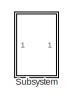
[diagram: root canvas - part 1/2, top right region]
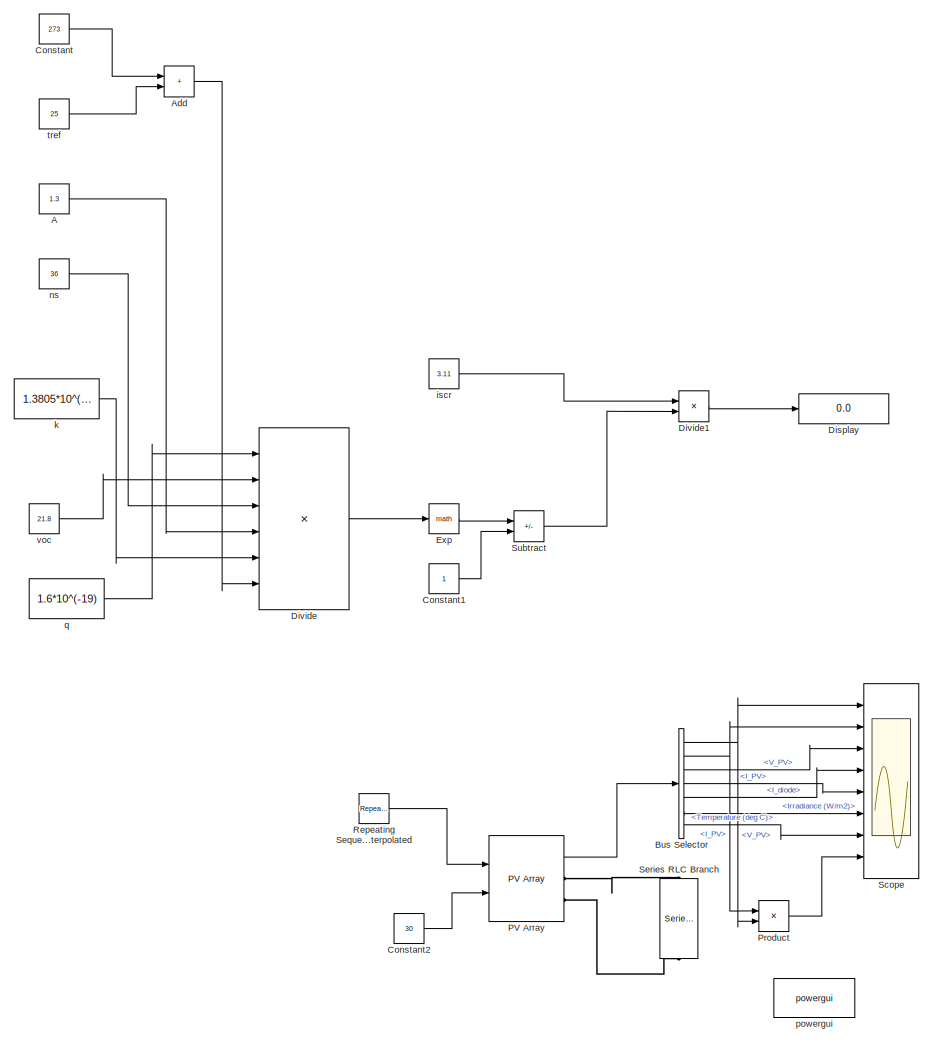
[diagram: root canvas - part 2/2, bottom left region]
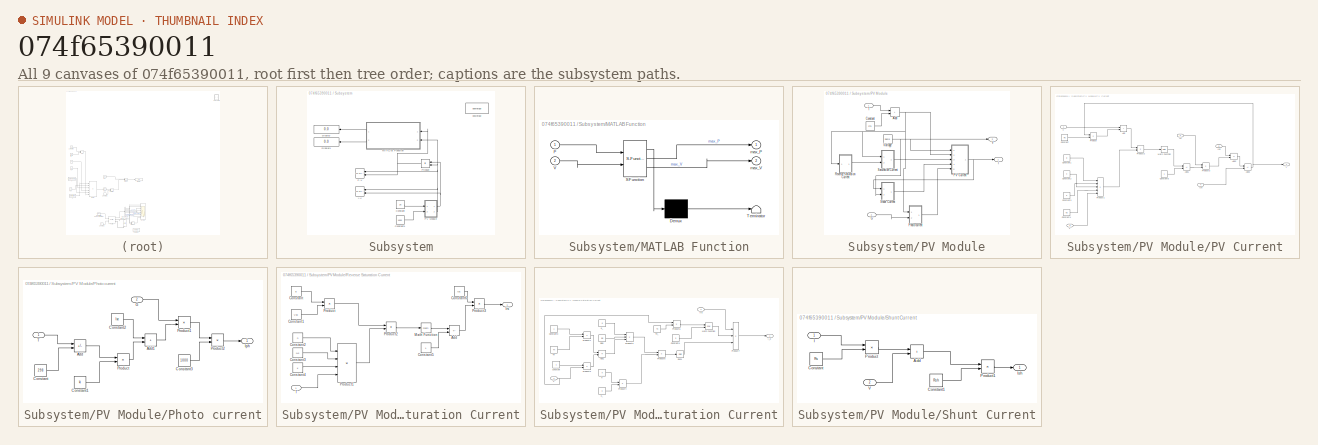
[diagram: thumbnail index - all 9 canvases of the model, root first then tree order]
MODEL slx_074f65390011
KIND model
CONFIG AbsTol = auto
CONFIG EnableMultiTasking = off
CONFIG FixedStep = auto
CONFIG MaxStep = auto
CONFIG MinStep = auto
CONFIG RelTol = 1e-10
CONFIG SampleTimeConstraint = Unconstrained
CONFIG Solver = VariableStepAuto
CONFIG SolverName = VariableStepAuto
CONFIG StartTime = 0.0
CONFIG StopTime = 4
BLOCK [Constant] A
  Value = 1.3
BLOCK [Sum] Add
  IconShape = rectangular
  Ports = [2, 1]
BLOCK [BusSelector] Bus Selector
  OutputSignals = V_PV,I_PV,V_PV,I_PV,I_diode,Irradiance (W/m2),Temperature (deg C)
  Ports = [1, 7]
BLOCK [Constant] Constant
  Value = 273
BLOCK [Constant] Constant1
BLOCK [Constant] Constant2
  Value = 30
BLOCK [Display] Display
  Decimation = 1
  Ports = [1]
BLOCK [Product] Divide
  Inputs = **////
  Ports = [6, 1]
BLOCK [Product] Divide1
  Inputs = */
  Ports = [2, 1]
BLOCK [Math] Exp
  Ports = [1, 1]
BLOCK [Reference] PV Array  REF=re_lib/Solar/PV Array
  Ports = [2, 1, 0, 0, 0, 0, 2]
  SourceBlock = re_lib/Solar/PV Array
  SourceProductBaseCode = PS
  SourceType = PV array
BLOCK [Product] Product
  Ports = [2, 1]
BLOCK [Reference] Repeating Sequence Interpolated  REF=simulink/Sources/Repeating
Sequence
Interpolated
  Ports = [0, 1]
  SourceBlock = simulink/Sources/Repeating\nSequence\nInterpolated
  SourceProductBaseCode = SL
  SourceType = Repeating Sequence Interpolated
BLOCK [Scope] Scope
  Floating = off
  NumInputPorts = 8
  Ports = [8]
  ScopeSpecificationString = Simulink.scopes.TimeScopeBlockCfg('CurrentConfiguration', extmgr.ConfigurationSet(extmgr.Configuration('Core','General UI',true),extmgr.Configuration('Core','Source UI',true),extmgr.Configuration('Sources','WiredSimulink',true),extmgr.Configuration('Visuals','Time Domain',true,'SerializedDisplays',{struct('MinYLimReal','7.89749','MaxYLimReal','55.22426','YLabelReal','','MinYLimMag','7.89749','MaxY...<+6896ch>
BLOCK [Reference] Series RLC Branch  REF=powerlib/Elements/Series RLC Branch
  NameLocation = left
  Ports = [0, 0, 0, 0, 0, 1, 1]
  SourceBlock = powerlib/Elements/Series RLC Branch
  SourceProductBaseCode = PS
  SourceType = Series RLC Branch
BLOCK [SubSystem] Subsystem
  Ports = []
  RequestExecContextInheritance = off
BLOCK [Constant] Subsystem/Constant
  Value = 25
BLOCK [Constant] Subsystem/Constant1
  Value = 1000
BLOCK [Display] Subsystem/Display
  Decimation = 1
  NameLocation = top
  Ports = [1]
BLOCK [Display] Subsystem/Display1
  Decimation = 1
  NameLocation = top
  Ports = [1]
BLOCK [Reference] Subsystem/I-V  REF=simulink/Sinks/XY Graph
  NameLocation = top
  Ports = [2]
  SourceBlock = simulink/Sinks/XY Graph
  SourceProductBaseCode = SL
  SourceType = XY scope.
BLOCK [SubSystem] Subsystem/MATLAB Function
  ErrorFcn = Stateflow.Translate.translate
  NameLocation = top
  PermitHierarchicalResolution = ExplicitOnly
  Ports = [2, 2]
  RequestExecContextInheritance = off
  SFBlockType = MATLAB Function
  TreatAsAtomicUnit = on
BLOCK [Demux] Subsystem/MATLAB Function/ Demux 
  Outputs = 1
  Ports = [1, 1]
BLOCK [S-Function] Subsystem/MATLAB Function/ SFunction 
  EnableBusSupport = on
  FunctionName = sf_sfun
  PortCounts = [2 3]
  Ports = [2, 3]
  SFcnIsStateOwnerBlock = off
  SFunctionDeploymentMode = off
  Tag = Stateflow S-Function 2
BLOCK [Terminator] Subsystem/MATLAB Function/ Terminator 
BLOCK [Inport] Subsystem/MATLAB Function/P
BLOCK [Inport] Subsystem/MATLAB Function/V
  Port = 2
BLOCK [Outport] Subsystem/MATLAB Function/max_P
BLOCK [Outport] Subsystem/MATLAB Function/max_V
  Port = 2
BLOCK [Reference] Subsystem/P-V  REF=simulink/Sinks/XY Graph
  NameLocation = top
  Ports = [2]
  SourceBlock = simulink/Sinks/XY Graph
  SourceProductBaseCode = SL
  SourceType = XY scope.
BLOCK [SubSystem] Subsystem/PV Module
  Ports = [2, 2]
  RequestExecContextInheritance = off
BLOCK [Sum] Subsystem/PV Module/Add
  IconShape = rectangular
  Ports = [2, 1]
BLOCK [Constant] Subsystem/PV Module/Constant
  Value = 273
BLOCK [Inport] Subsystem/PV Module/G
  Port = 2
BLOCK [Outport] Subsystem/PV Module/I
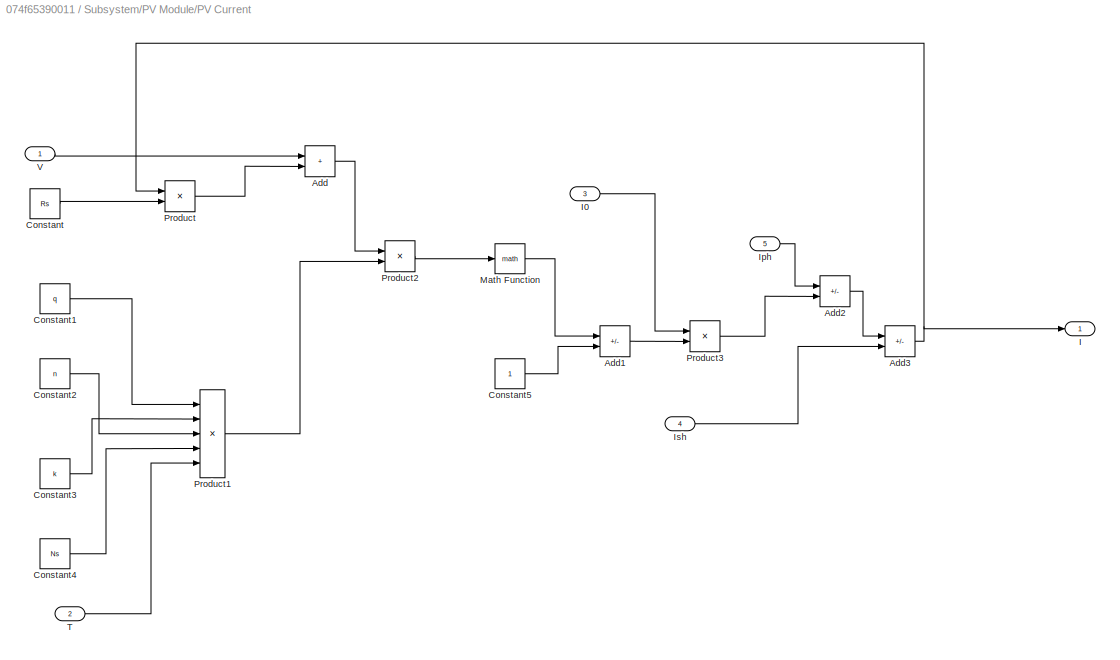
BLOCK [SubSystem] Subsystem/PV Module/PV Current
  Ports = [5, 1]
  RequestExecContextInheritance = off
BLOCK [Sum] Subsystem/PV Module/PV Current/Add
  IconShape = rectangular
  Ports = [2, 1]
BLOCK [Sum] Subsystem/PV Module/PV Current/Add1
  IconShape = rectangular
  Inputs = +-
  Ports = [2, 1]
BLOCK [Sum] Subsystem/PV Module/PV Current/Add2
  IconShape = rectangular
  Inputs = +-
  Ports = [2, 1]
BLOCK [Sum] Subsystem/PV Module/PV Current/Add3
  IconShape = rectangular
  Inputs = +-
  Ports = [2, 1]
BLOCK [Constant] Subsystem/PV Module/PV Current/Constant
  Value = Rs
BLOCK [Constant] Subsystem/PV Module/PV Current/Constant1
  Value = q
BLOCK [Constant] Subsystem/PV Module/PV Current/Constant2
  Value = n
BLOCK [Constant] Subsystem/PV Module/PV Current/Constant3
  Value = k
BLOCK [Constant] Subsystem/PV Module/PV Current/Constant4
  Value = Ns
BLOCK [Constant] Subsystem/PV Module/PV Current/Constant5
BLOCK [Outport] Subsystem/PV Module/PV Current/I
BLOCK [Inport] Subsystem/PV Module/PV Current/I0
  Port = 3
BLOCK [Inport] Subsystem/PV Module/PV Current/Iph
  Port = 5
BLOCK [Inport] Subsystem/PV Module/PV Current/Ish
  Port = 4
BLOCK [Math] Subsystem/PV Module/PV Current/Math Function
  Ports = [1, 1]
BLOCK [Product] Subsystem/PV Module/PV Current/Product
  Ports = [2, 1]
BLOCK [Product] Subsystem/PV Module/PV Current/Product1
  Inputs = *////
  Ports = [5, 1]
BLOCK [Product] Subsystem/PV Module/PV Current/Product2
  Ports = [2, 1]
BLOCK [Product] Subsystem/PV Module/PV Current/Product3
  Ports = [2, 1]
BLOCK [Inport] Subsystem/PV Module/PV Current/T
  Port = 2
BLOCK [Inport] Subsystem/PV Module/PV Current/V
BLOCK [SubSystem] Subsystem/PV Module/Photo current
  Ports = [2, 1]
  RequestExecContextInheritance = off
BLOCK [Sum] Subsystem/PV Module/Photo current/Add
  IconShape = rectangular
  Inputs = +-
  Ports = [2, 1]
BLOCK [Sum] Subsystem/PV Module/Photo current/Add1
  IconShape = rectangular
  Ports = [2, 1]
BLOCK [Constant] Subsystem/PV Module/Photo current/Constant
  Value = 298
BLOCK [Constant] Subsystem/PV Module/Photo current/Constant1
  Value = ki
BLOCK [Constant] Subsystem/PV Module/Photo current/Constant2
  Value = Isc
BLOCK [Constant] Subsystem/PV Module/Photo current/Constant3
  Value = 1000
BLOCK [Inport] Subsystem/PV Module/Photo current/G
  Port = 2
BLOCK [Outport] Subsystem/PV Module/Photo current/Iph
BLOCK [Product] Subsystem/PV Module/Photo current/Product
  Ports = [2, 1]
BLOCK [Product] Subsystem/PV Module/Photo current/Product1
  Ports = [2, 1]
BLOCK [Product] Subsystem/PV Module/Photo current/Product2
  Inputs = */
  Ports = [2, 1]
BLOCK [Inport] Subsystem/PV Module/Photo current/T
BLOCK [SubSystem] Subsystem/PV Module/Reverse Saturation Current
  Ports = [1, 1]
  RequestExecContextInheritance = off
BLOCK [Sum] Subsystem/PV Module/Reverse Saturation Current/Add
  IconShape = rectangular
  Inputs = +-
  Ports = [2, 1]
BLOCK [Constant] Subsystem/PV Module/Reverse Saturation Current/Constant
  Value = q
BLOCK [Constant] Subsystem/PV Module/Reverse Saturation Current/Constant1
  Value = Voc
BLOCK [Constant] Subsystem/PV Module/Reverse Saturation Current/Constant2
  Value = n
BLOCK [Constant] Subsystem/PV Module/Reverse Saturation Current/Constant3
  Value = Ns
BLOCK [Constant] Subsystem/PV Module/Reverse Saturation Current/Constant4
  Value = k
BLOCK [Constant] Subsystem/PV Module/Reverse Saturation Current/Constant5
BLOCK [Constant] Subsystem/PV Module/Reverse Saturation Current/Constant6
  Value = Isc
BLOCK [Outport] Subsystem/PV Module/Reverse Saturation Current/Irs
BLOCK [Math] Subsystem/PV Module/Reverse Saturation Current/Math Function
  Ports = [1, 1]
BLOCK [Product] Subsystem/PV Module/Reverse Saturation Current/Product
  Ports = [2, 1]
BLOCK [Product] Subsystem/PV Module/Reverse Saturation Current/Product1
  Inputs = 4
  Ports = [4, 1]
BLOCK [Product] Subsystem/PV Module/Reverse Saturation Current/Product2
  Inputs = */
  Ports = [2, 1]
BLOCK [Product] Subsystem/PV Module/Reverse Saturation Current/Product3
  Inputs = */
  Ports = [2, 1]
BLOCK [Inport] Subsystem/PV Module/Reverse Saturation Current/T
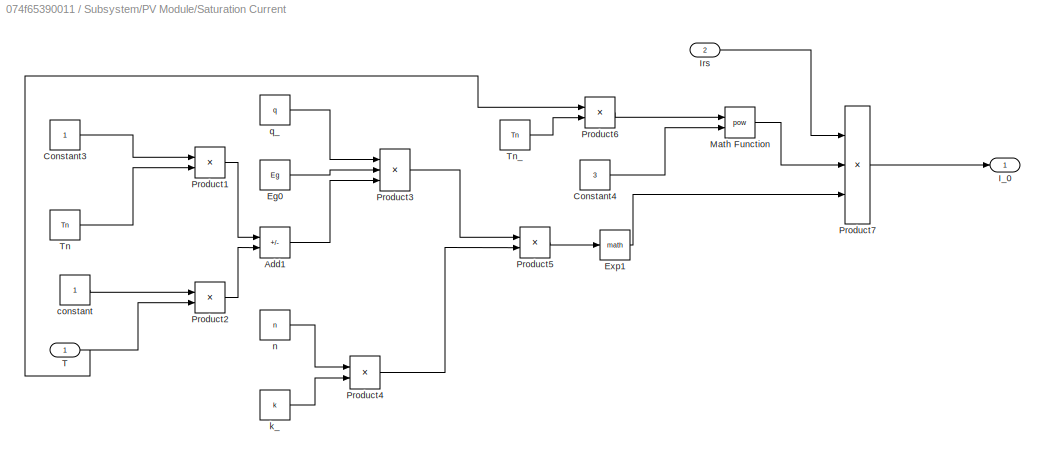
BLOCK [SubSystem] Subsystem/PV Module/Saturation Current
  Ports = [2, 1]
  RequestExecContextInheritance = off
BLOCK [Sum] Subsystem/PV Module/Saturation Current/Add1
  IconShape = rectangular
  Inputs = +-
  Ports = [2, 1]
BLOCK [Constant] Subsystem/PV Module/Saturation Current/Constant3
BLOCK [Constant] Subsystem/PV Module/Saturation Current/Constant4
  Value = 3
BLOCK [Constant] Subsystem/PV Module/Saturation Current/Eg0
  Value = Eg
BLOCK [Math] Subsystem/PV Module/Saturation Current/Exp1
  Ports = [1, 1]
BLOCK [Outport] Subsystem/PV Module/Saturation Current/I_0
BLOCK [Inport] Subsystem/PV Module/Saturation Current/Irs
  Port = 2
BLOCK [Math] Subsystem/PV Module/Saturation Current/Math Function
  Operator = pow
  Ports = [2, 1]
BLOCK [Product] Subsystem/PV Module/Saturation Current/Product1
  Inputs = */
  Ports = [2, 1]
BLOCK [Product] Subsystem/PV Module/Saturation Current/Product2
  Inputs = */
  Ports = [2, 1]
BLOCK [Product] Subsystem/PV Module/Saturation Current/Product3
  Inputs = ***
  Ports = [3, 1]
BLOCK [Product] Subsystem/PV Module/Saturation Current/Product4
  Inputs = **
  Ports = [2, 1]
BLOCK [Product] Subsystem/PV Module/Saturation Current/Product5
  Inputs = */
  Ports = [2, 1]
BLOCK [Product] Subsystem/PV Module/Saturation Current/Product6
  Inputs = */
  Ports = [2, 1]
BLOCK [Product] Subsystem/PV Module/Saturation Current/Product7
  Inputs = 3
  Ports = [3, 1]
BLOCK [Inport] Subsystem/PV Module/Saturation Current/T
BLOCK [Constant] Subsystem/PV Module/Saturation Current/Tn
  Value = Tn
BLOCK [Constant] Subsystem/PV Module/Saturation Current/Tn_
  Value = Tn
BLOCK [Constant] Subsystem/PV Module/Saturation Current/constant
BLOCK [Constant] Subsystem/PV Module/Saturation Current/k_
  Value = k
BLOCK [Constant] Subsystem/PV Module/Saturation Current/n
  Value = n
BLOCK [Constant] Subsystem/PV Module/Saturation Current/q_
  Value = q
BLOCK [SubSystem] Subsystem/PV Module/Shunt Current
  Ports = [2, 1]
  RequestExecContextInheritance = off
BLOCK [Sum] Subsystem/PV Module/Shunt Current/Add
  IconShape = rectangular
  Ports = [2, 1]
BLOCK [Constant] Subsystem/PV Module/Shunt Current/Constant
  Value = Rs
BLOCK [Constant] Subsystem/PV Module/Shunt Current/Constant1
  Value = Rsh
BLOCK [Inport] Subsystem/PV Module/Shunt Current/I
BLOCK [Outport] Subsystem/PV Module/Shunt Current/Ish
BLOCK [Product] Subsystem/PV Module/Shunt Current/Product
  Ports = [2, 1]
BLOCK [Product] Subsystem/PV Module/Shunt Current/Product1
  Inputs = */
  Ports = [2, 1]
BLOCK [Inport] Subsystem/PV Module/Shunt Current/V
  Port = 2
BLOCK [Inport] Subsystem/PV Module/T
BLOCK [Outport] Subsystem/PV Module/V
  Port = 2
BLOCK [Reference] Subsystem/PV Module/Voltage  REF=simulink/Sources/Ramp
  Ports = [0, 1]
  SourceBlock = simulink/Sources/Ramp
  SourceProductBaseCode = SL
  SourceType = Ramp
BLOCK [Product] Subsystem/Product
  NameLocation = top
  Ports = [2, 1]
BLOCK [Reference] Subsystem/powergui  REF=powerlib/powergui
  Ports = []
  Priority = 1
  SourceBlock = powerlib/powergui
  SourceProductBaseCode = PS
  SourceType = PSB option menu block
BLOCK [Sum] Subtract
  IconShape = rectangular
  Inputs = +-
  Ports = [2, 1]
BLOCK [Constant] iscr
  Value = 3.11
BLOCK [Constant] k
  Value = 1.3805*10^(-23)
BLOCK [Constant] ns
  Value = 36
BLOCK [Reference] powergui  REF=powerlib/powergui
  Ports = []
  Priority = 1
  SourceBlock = powerlib/powergui
  SourceProductBaseCode = PS
  SourceType = PSB option menu block
BLOCK [Constant] q
  Value = 1.6*10^(-19)
BLOCK [Constant] tref
  Value = 25
BLOCK [Constant] voc
  Value = 21.8
LINE A:1 -> Divide:4
LINE Add:1 -> Divide:6
NET Bus Selector:1 -> Product:2, Scope:1
NET Bus Selector:2 -> Product:1, Scope:2
LINE Bus Selector:3 -> Scope:3
LINE Bus Selector:4 -> Scope:5
LINE Bus Selector:5 -> Scope:4
LINE Bus Selector:6 -> Scope:6
LINE Bus Selector:7 -> Scope:7
LINE Constant1:1 -> Subtract:2
LINE Constant2:1 -> PV Array:2
LINE Constant:1 -> Add:1
LINE Divide1:1 -> Display:1
LINE Divide:1 -> Exp:1
LINE Exp:1 -> Subtract:1
LINE PV Array:1 -> Bus Selector:1
LINE Product:1 -> Scope:8
LINE Repeating Sequence Interpolated:1 -> PV Array:1
LINE Subsystem/Constant1:1 -> Subsystem/PV Module:2
LINE Subsystem/Constant:1 -> Subsystem/PV Module:1
LINE Subsystem/MATLAB Function:1 -> Subsystem/Display:1
LINE Subsystem/MATLAB Function:2 -> Subsystem/Display1:1
NET Subsystem/PV Module/Add:1 -> Subsystem/PV Module/PV Current:2, Subsystem/PV Module/Photo current:1, Subsystem/PV Module/Reverse Saturation Current:1, Subsystem/PV Module/Saturation Current:1
LINE Subsystem/PV Module/Constant:1 -> Subsystem/PV Module/Add:2
LINE Subsystem/PV Module/G:1 -> Subsystem/PV Module/Photo current:2
LINE Subsystem/PV Module/PV Current/Add1:1 -> Subsystem/PV Module/PV Current/Product3:2
LINE Subsystem/PV Module/PV Current/Add2:1 -> Subsystem/PV Module/PV Current/Add3:1
NET Subsystem/PV Module/PV Current/Add3:1 -> Subsystem/PV Module/PV Current/I:1, Subsystem/PV Module/PV Current/Product:1
LINE Subsystem/PV Module/PV Current/Add:1 -> Subsystem/PV Module/PV Current/Product2:1
LINE Subsystem/PV Module/PV Current/Constant1:1 -> Subsystem/PV Module/PV Current/Product1:1
LINE Subsystem/PV Module/PV Current/Constant2:1 -> Subsystem/PV Module/PV Current/Product1:3
LINE Subsystem/PV Module/PV Current/Constant3:1 -> Subsystem/PV Module/PV Current/Product1:2
LINE Subsystem/PV Module/PV Current/Constant4:1 -> Subsystem/PV Module/PV Current/Product1:4
LINE Subsystem/PV Module/PV Current/Constant5:1 -> Subsystem/PV Module/PV Current/Add1:2
LINE Subsystem/PV Module/PV Current/Constant:1 -> Subsystem/PV Module/PV Current/Product:2
LINE Subsystem/PV Module/PV Current/I0:1 -> Subsystem/PV Module/PV Current/Product3:1
LINE Subsystem/PV Module/PV Current/Iph:1 -> Subsystem/PV Module/PV Current/Add2:1
LINE Subsystem/PV Module/PV Current/Ish:1 -> Subsystem/PV Module/PV Current/Add3:2
LINE Subsystem/PV Module/PV Current/Math Function:1 -> Subsystem/PV Module/PV Current/Add1:1
LINE Subsystem/PV Module/PV Current/Product1:1 -> Subsystem/PV Module/PV Current/Product2:2
LINE Subsystem/PV Module/PV Current/Product2:1 -> Subsystem/PV Module/PV Current/Math Function:1
LINE Subsystem/PV Module/PV Current/Product3:1 -> Subsystem/PV Module/PV Current/Add2:2
LINE Subsystem/PV Module/PV Current/Product:1 -> Subsystem/PV Module/PV Current/Add:2
LINE Subsystem/PV Module/PV Current/T:1 -> Subsystem/PV Module/PV Current/Product1:5
LINE Subsystem/PV Module/PV Current/V:1 -> Subsystem/PV Module/PV Current/Add:1
NET Subsystem/PV Module/PV Current:1 -> Subsystem/PV Module/I:1, Subsystem/PV Module/Shunt Current:1
LINE Subsystem/PV Module/Photo current/Add1:1 -> Subsystem/PV Module/Photo current/Product1:2
LINE Subsystem/PV Module/Photo current/Add:1 -> Subsystem/PV Module/Photo current/Product:1
LINE Subsystem/PV Module/Photo current/Constant1:1 -> Subsystem/PV Module/Photo current/Product:2
LINE Subsystem/PV Module/Photo current/Constant2:1 -> Subsystem/PV Module/Photo current/Add1:1
LINE Subsystem/PV Module/Photo current/Constant3:1 -> Subsystem/PV Module/Photo current/Product2:2
LINE Subsystem/PV Module/Photo current/Constant:1 -> Subsystem/PV Module/Photo current/Add:2
LINE Subsystem/PV Module/Photo current/G:1 -> Subsystem/PV Module/Photo current/Product1:1
LINE Subsystem/PV Module/Photo current/Product1:1 -> Subsystem/PV Module/Photo current/Product2:1
LINE Subsystem/PV Module/Photo current/Product2:1 -> Subsystem/PV Module/Photo current/Iph:1
LINE Subsystem/PV Module/Photo current/Product:1 -> Subsystem/PV Module/Photo current/Add1:2
LINE Subsystem/PV Module/Photo current/T:1 -> Subsystem/PV Module/Photo current/Add:1
LINE Subsystem/PV Module/Photo current:1 -> Subsystem/PV Module/PV Current:5
LINE Subsystem/PV Module/Reverse Saturation Current/Add:1 -> Subsystem/PV Module/Reverse Saturation Current/Product3:2
LINE Subsystem/PV Module/Reverse Saturation Current/Constant1:1 -> Subsystem/PV Module/Reverse Saturation Current/Product:2
LINE Subsystem/PV Module/Reverse Saturation Current/Constant2:1 -> Subsystem/PV Module/Reverse Saturation Current/Product1:1
LINE Subsystem/PV Module/Reverse Saturation Current/Constant3:1 -> Subsystem/PV Module/Reverse Saturation Current/Product1:2
LINE Subsystem/PV Module/Reverse Saturation Current/Constant4:1 -> Subsystem/PV Module/Reverse Saturation Current/Product1:3
LINE Subsystem/PV Module/Reverse Saturation Current/Constant5:1 -> Subsystem/PV Module/Reverse Saturation Current/Add:2
LINE Subsystem/PV Module/Reverse Saturation Current/Constant6:1 -> Subsystem/PV Module/Reverse Saturation Current/Product3:1
LINE Subsystem/PV Module/Reverse Saturation Current/Constant:1 -> Subsystem/PV Module/Reverse Saturation Current/Product:1
LINE Subsystem/PV Module/Reverse Saturation Current/Math Function:1 -> Subsystem/PV Module/Reverse Saturation Current/Add:1
LINE Subsystem/PV Module/Reverse Saturation Current/Product1:1 -> Subsystem/PV Module/Reverse Saturation Current/Product2:2
LINE Subsystem/PV Module/Reverse Saturation Current/Product2:1 -> Subsystem/PV Module/Reverse Saturation Current/Math Function:1
LINE Subsystem/PV Module/Reverse Saturation Current/Product3:1 -> Subsystem/PV Module/Reverse Saturation Current/Irs:1
LINE Subsystem/PV Module/Reverse Saturation Current/Product:1 -> Subsystem/PV Module/Reverse Saturation Current/Product2:1
LINE Subsystem/PV Module/Reverse Saturation Current/T:1 -> Subsystem/PV Module/Reverse Saturation Current/Product1:4
LINE Subsystem/PV Module/Reverse Saturation Current:1 -> Subsystem/PV Module/Saturation Current:2
LINE Subsystem/PV Module/Saturation Current/Add1:1 -> Subsystem/PV Module/Saturation Current/Product3:3
LINE Subsystem/PV Module/Saturation Current/Constant3:1 -> Subsystem/PV Module/Saturation Current/Product1:1
LINE Subsystem/PV Module/Saturation Current/Constant4:1 -> Subsystem/PV Module/Saturation Current/Math Function:2
LINE Subsystem/PV Module/Saturation Current/Eg0:1 -> Subsystem/PV Module/Saturation Current/Product3:2
LINE Subsystem/PV Module/Saturation Current/Exp1:1 -> Subsystem/PV Module/Saturation Current/Product7:3
LINE Subsystem/PV Module/Saturation Current/Irs:1 -> Subsystem/PV Module/Saturation Current/Product7:1
LINE Subsystem/PV Module/Saturation Current/Math Function:1 -> Subsystem/PV Module/Saturation Current/Product7:2
LINE Subsystem/PV Module/Saturation Current/Product1:1 -> Subsystem/PV Module/Saturation Current/Add1:1
LINE Subsystem/PV Module/Saturation Current/Product2:1 -> Subsystem/PV Module/Saturation Current/Add1:2
LINE Subsystem/PV Module/Saturation Current/Product3:1 -> Subsystem/PV Module/Saturation Current/Product5:1
LINE Subsystem/PV Module/Saturation Current/Product4:1 -> Subsystem/PV Module/Saturation Current/Product5:2
LINE Subsystem/PV Module/Saturation Current/Product5:1 -> Subsystem/PV Module/Saturation Current/Exp1:1
LINE Subsystem/PV Module/Saturation Current/Product6:1 -> Subsystem/PV Module/Saturation Current/Math Function:1
LINE Subsystem/PV Module/Saturation Current/Product7:1 -> Subsystem/PV Module/Saturation Current/I_0:1
NET Subsystem/PV Module/Saturation Current/T:1 -> Subsystem/PV Module/Saturation Current/Product2:2, Subsystem/PV Module/Saturation Current/Product6:1
LINE Subsystem/PV Module/Saturation Current/Tn:1 -> Subsystem/PV Module/Saturation Current/Product1:2
LINE Subsystem/PV Module/Saturation Current/Tn_:1 -> Subsystem/PV Module/Saturation Current/Product6:2
LINE Subsystem/PV Module/Saturation Current/constant:1 -> Subsystem/PV Module/Saturation Current/Product2:1
LINE Subsystem/PV Module/Saturation Current/k_:1 -> Subsystem/PV Module/Saturation Current/Product4:2
LINE Subsystem/PV Module/Saturation Current/n:1 -> Subsystem/PV Module/Saturation Current/Product4:1
LINE Subsystem/PV Module/Saturation Current/q_:1 -> Subsystem/PV Module/Saturation Current/Product3:1
LINE Subsystem/PV Module/Saturation Current:1 -> Subsystem/PV Module/PV Current:3
LINE Subsystem/PV Module/Shunt Current/Add:1 -> Subsystem/PV Module/Shunt Current/Product1:1
LINE Subsystem/PV Module/Shunt Current/Constant1:1 -> Subsystem/PV Module/Shunt Current/Product1:2
LINE Subsystem/PV Module/Shunt Current/Constant:1 -> Subsystem/PV Module/Shunt Current/Product:2
LINE Subsystem/PV Module/Shunt Current/I:1 -> Subsystem/PV Module/Shunt Current/Product:1
LINE Subsystem/PV Module/Shunt Current/Product1:1 -> Subsystem/PV Module/Shunt Current/Ish:1
LINE Subsystem/PV Module/Shunt Current/Product:1 -> Subsystem/PV Module/Shunt Current/Add:1
LINE Subsystem/PV Module/Shunt Current/V:1 -> Subsystem/PV Module/Shunt Current/Add:2
LINE Subsystem/PV Module/Shunt Current:1 -> Subsystem/PV Module/PV Current:4
LINE Subsystem/PV Module/T:1 -> Subsystem/PV Module/Add:1
NET Subsystem/PV Module/Voltage:1 -> Subsystem/PV Module/PV Current:1, Subsystem/PV Module/Shunt Current:2, Subsystem/PV Module/V:1
NET Subsystem/PV Module:1 -> Subsystem/I-V:2, Subsystem/Product:1
NET Subsystem/PV Module:2 -> Subsystem/I-V:1, Subsystem/MATLAB Function:2, Subsystem/P-V:1, Subsystem/Product:2
NET Subsystem/Product:1 -> Subsystem/MATLAB Function:1, Subsystem/P-V:2
LINE Subtract:1 -> Divide1:2
LINE iscr:1 -> Divide1:1
LINE k:1 -> Divide:5
LINE ns:1 -> Divide:3
LINE q:1 -> Divide:1
LINE tref:1 -> Add:2
LINE voc:1 -> Divide:2
PLINE PV Array:RConn1 -- Series RLC Branch:LConn1
PLINE PV Array:RConn2 -- Series RLC Branch:RConn1
note: NET lines group one-source signal fan-out (src -> all destinations, sorted); 1:1 wires keep LINE
CHART Subsystem/MATLAB Function states=1 transitions=1
  STATE_LABEL 'eML_blk_kernel()'
  STATE_LABEL 'SCRIPT:\nfunction [max_P, max_V] = max_val(P,V)\n\npersistent Ppre Vpre\n\nif isempty(Ppre)\n    Ppre = 0;\n    Vpre = 0;\nend\n\nif (Ppre > P)\n    max_P    = Ppre;\n    max_V = Vpre;\n    \nelse\n    max_P    = P;\n    max_V = V;\nend\nPpre = max_P;\nVpre = max_V; \n\n\n'
CHART  states=0 transitions=0
